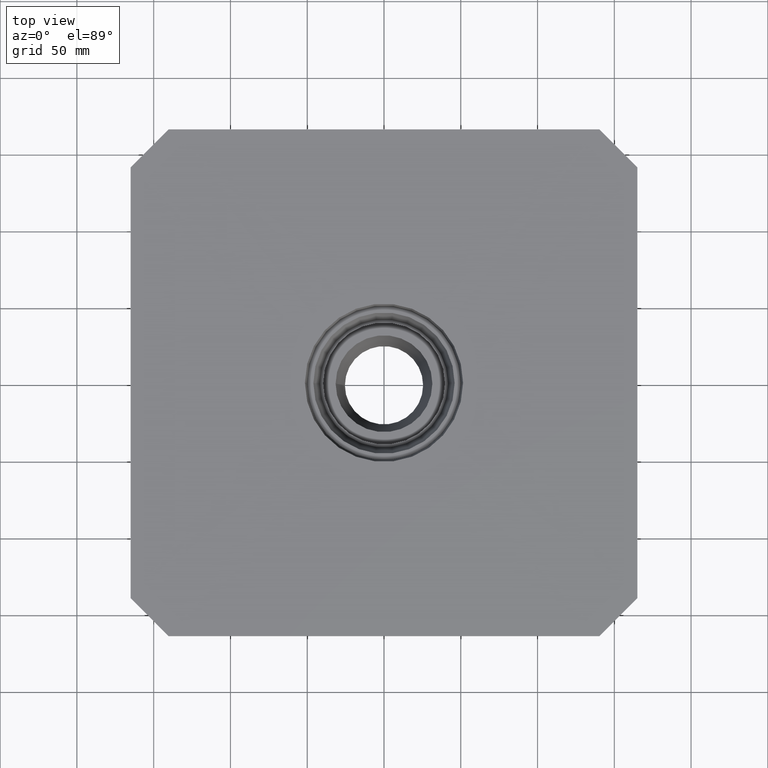
[diagram: clean part render]
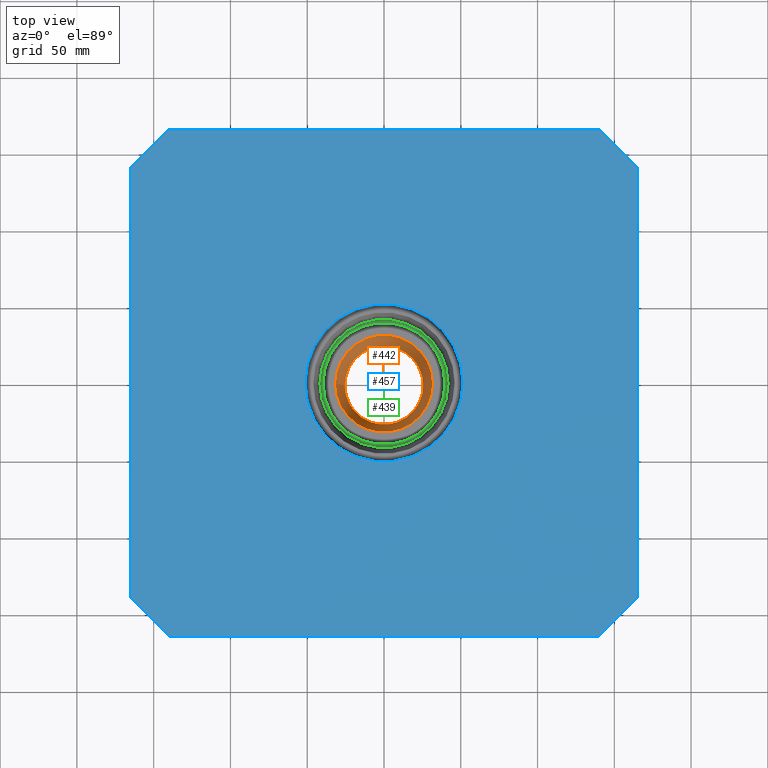
[diagram: same view with three faces highlighted in distinct colors, each labeled with its STEP entity id]
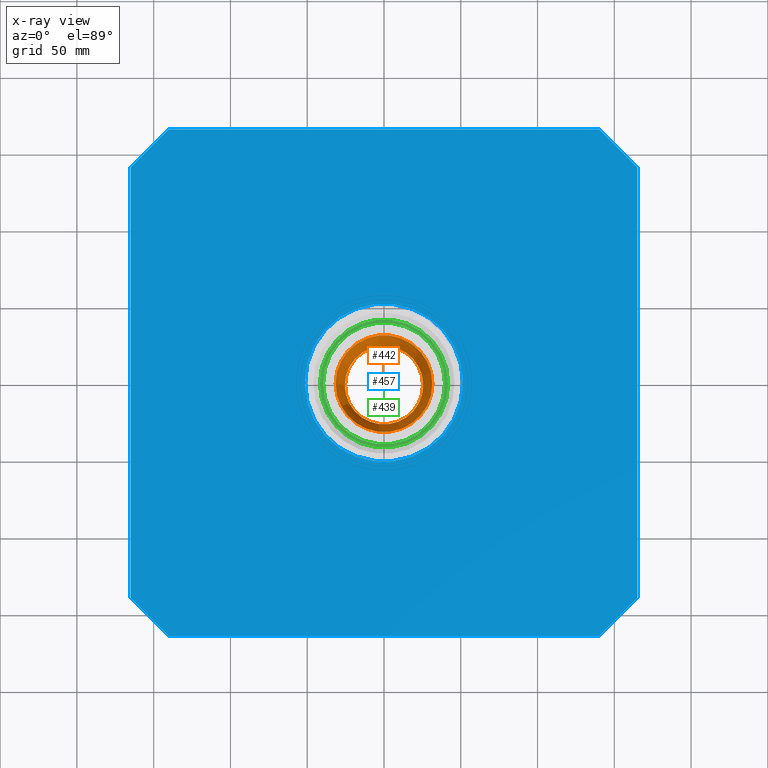
[diagram: x-ray of the same camera — body ghosted, the three highlighted faces saturated]
A machine part, top view with three faces highlighted in distinct colors.
The next image is the same camera in x-ray (body ghosted, the three faces saturated) — at least one of them is partly hidden behind the body in this view.
Their STEP definitions:

[orange] entity #442 — the highlighted conical surface has half-angle 5.752 deg.
#22=CONICAL_SURFACE('',#499,31.499,0.10039079241774);
#39=CIRCLE('',#498,31.499);
#40=CIRCLE('',#500,25.478);
#110=ORIENTED_EDGE('',*,*,#191,.T.);
#111=ORIENTED_EDGE('',*,*,#190,.F.);
#190=EDGE_CURVE('',#230,#230,#39,.T.);
#191=EDGE_CURVE('',#231,#231,#40,.T.);
#230=VERTEX_POINT('',#747);
#231=VERTEX_POINT('',#750);
#318=EDGE_LOOP('',(#110));
#319=EDGE_LOOP('',(#111));
#376=FACE_BOUND('',#318,.T.);
#377=FACE_BOUND('',#319,.T.);
#442=ADVANCED_FACE('',(#376,#377),#22,.F.);
#498=AXIS2_PLACEMENT_3D('',#746,#608,#609);
#499=AXIS2_PLACEMENT_3D('',#748,#610,#611);
#500=AXIS2_PLACEMENT_3D('',#749,#612,#613);
#608=DIRECTION('',(0.,0.,-1.));
#609=DIRECTION('',(-1.,0.,0.));
#610=DIRECTION('',(0.,0.,1.));
#611=DIRECTION('',(1.,0.,0.));
#612=DIRECTION('',(0.,0.,-1.));
#613=DIRECTION('',(-1.,0.,0.));
#746=CARTESIAN_POINT('',(0.,0.,-34.449));
#747=CARTESIAN_POINT('',(-31.499,0.,-34.449));
#748=CARTESIAN_POINT('',(0.,0.,-34.449));
#749=CARTESIAN_POINT('',(0.,0.,-94.223));
#750=CARTESIAN_POINT('',(-25.478,0.,-94.223));

[blue] entity #457 — the highlighted planar face has unit normal (-0, 0, 1).
#30=CIRCLE('',#480,51.5);
#147=ORIENTED_EDGE('',*,*,#179,.F.);
#148=ORIENTED_EDGE('',*,*,#156,.T.);
#149=ORIENTED_EDGE('',*,*,#160,.T.);
#150=ORIENTED_EDGE('',*,*,#163,.T.);
#151=ORIENTED_EDGE('',*,*,#166,.T.);
#152=ORIENTED_EDGE('',*,*,#169,.T.);
#153=ORIENTED_EDGE('',*,*,#172,.T.);
#154=ORIENTED_EDGE('',*,*,#175,.T.);
#155=ORIENTED_EDGE('',*,*,#180,.T.);
#156=EDGE_CURVE('',#204,#205,#244,.T.);
#160=EDGE_CURVE('',#205,#208,#248,.T.);
#163=EDGE_CURVE('',#208,#210,#251,.T.);
#166=EDGE_CURVE('',#210,#212,#254,.T.);
#169=EDGE_CURVE('',#212,#214,#257,.T.);
#172=EDGE_CURVE('',#214,#216,#260,.T.);
#175=EDGE_CURVE('',#216,#218,#263,.T.);
#179=EDGE_CURVE('',#221,#221,#30,.T.);
#180=EDGE_CURVE('',#218,#204,#266,.T.);
#204=VERTEX_POINT('',#671);
#205=VERTEX_POINT('',#672);
#208=VERTEX_POINT('',#680);
#210=VERTEX_POINT('',#686);
#212=VERTEX_POINT('',#692);
#214=VERTEX_POINT('',#698);
#216=VERTEX_POINT('',#704);
#218=VERTEX_POINT('',#710);
#221=VERTEX_POINT('',#718);
#244=LINE('',#670,#268);
#248=LINE('',#679,#272);
#251=LINE('',#685,#275);
#254=LINE('',#691,#278);
#257=LINE('',#697,#281);
#260=LINE('',#703,#284);
#263=LINE('',#709,#287);
#266=LINE('',#720,#290);
#268=VECTOR('',#532,1000.);
#272=VECTOR('',#538,1000.);
#275=VECTOR('',#543,1000.);
#278=VECTOR('',#548,1000.);
#281=VECTOR('',#553,1000.);
#284=VECTOR('',#558,1000.);
#287=VECTOR('',#563,1000.);
#290=VECTOR('',#574,1000.);
#348=EDGE_LOOP('',(#147));
#349=EDGE_LOOP('',(#148,#149,#150,#151,#152,#153,#154,#155));
#406=FACE_BOUND('',#348,.T.);
#407=FACE_BOUND('',#349,.T.);
#424=PLANE('',#527);
#457=ADVANCED_FACE('',(#406,#407),#424,.T.);
#480=AXIS2_PLACEMENT_3D('',#717,#570,#571);
#527=AXIS2_PLACEMENT_3D('',#789,#666,#667);
#532=DIRECTION('',(0.,-1.,0.));
#538=DIRECTION('',(0.707106781186548,-0.707106781186548,1.35290595589709E-18));
#543=DIRECTION('',(1.,0.,1.91329795144501E-18));
#548=DIRECTION('',(0.707106781186548,0.707106781186548,1.35290595589709E-18));
#553=DIRECTION('',(0.,1.,0.));
#558=DIRECTION('',(-0.707106781186548,0.707106781186548,-1.35290595589709E-18));
#563=DIRECTION('',(-1.,0.,-1.91329795144501E-18));
#570=DIRECTION('',(-1.91329795144501E-18,0.,1.));
#571=DIRECTION('',(1.,0.,1.91329795144501E-18));
#574=DIRECTION('',(-0.707106781186548,-0.707106781186548,-1.35290595589709E-18));
#666=DIRECTION('',(-1.91329795144501E-18,0.,1.));
#667=DIRECTION('',(1.,0.,1.91329795144501E-18));
#670=CARTESIAN_POINT('',(-165.,140.251262658471,1.3));
#671=CARTESIAN_POINT('',(-165.,140.251262658471,1.3));
#672=CARTESIAN_POINT('',(-165.,-140.251262658471,1.3));
#679=CARTESIAN_POINT('',(-165.,-140.251262658471,1.3));
#680=CARTESIAN_POINT('',(-140.251262658471,-165.,1.3));
#685=CARTESIAN_POINT('',(-140.251262658471,-165.,1.3));
#686=CARTESIAN_POINT('',(140.251262658471,-165.,1.3));
#691=CARTESIAN_POINT('',(140.251262658471,-165.,1.3));
#692=CARTESIAN_POINT('',(165.,-140.251262658471,1.3));
#697=CARTESIAN_POINT('',(165.,-140.251262658471,1.3));
#698=CARTESIAN_POINT('',(165.,140.251262658471,1.3));
#703=CARTESIAN_POINT('',(165.,140.251262658471,1.3));
#704=CARTESIAN_POINT('',(140.251262658471,165.,1.3));
#709=CARTESIAN_POINT('',(140.251262658471,165.,1.3));
#710=CARTESIAN_POINT('',(-140.251262658471,165.,1.3));
#717=CARTESIAN_POINT('',(0.,0.,1.3));
#718=CARTESIAN_POINT('',(51.5,0.,1.3));
#720=CARTESIAN_POINT('',(-140.251262658471,165.,1.3));
#789=CARTESIAN_POINT('',(170.,170.,1.3));

[green] entity #439 — the highlighted planar face has unit normal (0, 0, 1).
#36=CIRCLE('',#492,41.709);
#37=CIRCLE('',#494,39.709);
#104=ORIENTED_EDGE('',*,*,#188,.T.);
#105=ORIENTED_EDGE('',*,*,#187,.F.);
#187=EDGE_CURVE('',#227,#227,#36,.T.);
#188=EDGE_CURVE('',#228,#228,#37,.T.);
#227=VERTEX_POINT('',#738);
#228=VERTEX_POINT('',#741);
#312=EDGE_LOOP('',(#104));
#313=EDGE_LOOP('',(#105));
#370=FACE_BOUND('',#312,.T.);
#371=FACE_BOUND('',#313,.T.);
#418=PLANE('',#493);
#439=ADVANCED_FACE('',(#370,#371),#418,.T.);
#492=AXIS2_PLACEMENT_3D('',#737,#596,#597);
#493=AXIS2_PLACEMENT_3D('',#739,#598,#599);
#494=AXIS2_PLACEMENT_3D('',#740,#600,#601);
#596=DIRECTION('',(0.,0.,-1.));
#597=DIRECTION('',(-1.,0.,0.));
#598=DIRECTION('',(0.,0.,1.));
#599=DIRECTION('',(1.,0.,0.));
#600=DIRECTION('',(0.,0.,-1.));
#601=DIRECTION('',(-1.,0.,0.));
#737=CARTESIAN_POINT('',(0.,0.,-28.449));
#738=CARTESIAN_POINT('',(-41.709,0.,-28.449));
#739=CARTESIAN_POINT('',(-41.709,0.,-28.449));
#740=CARTESIAN_POINT('',(0.,0.,-28.449));
#741=CARTESIAN_POINT('',(-39.709,0.,-28.449));